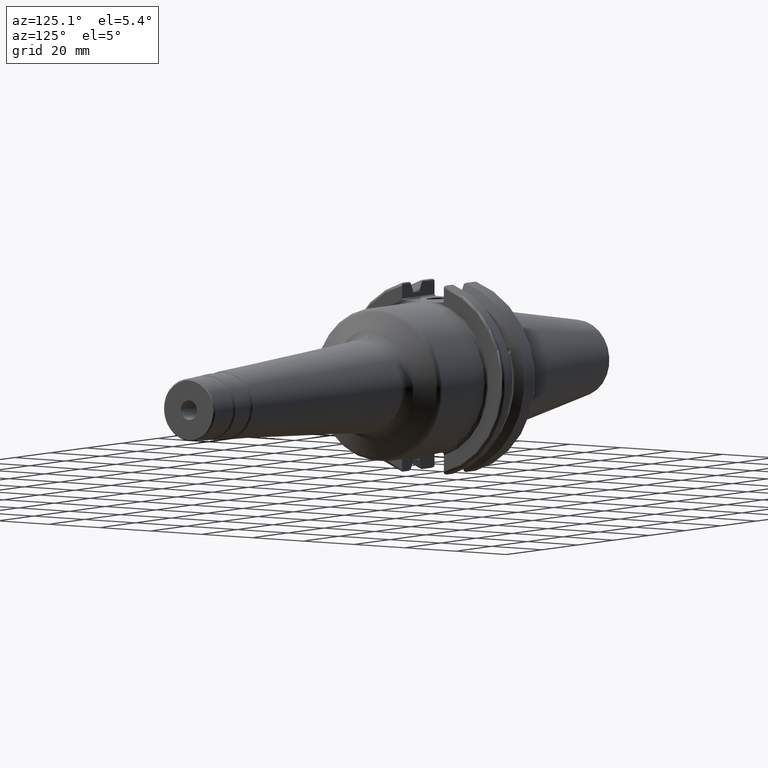
[diagram: clean part render]
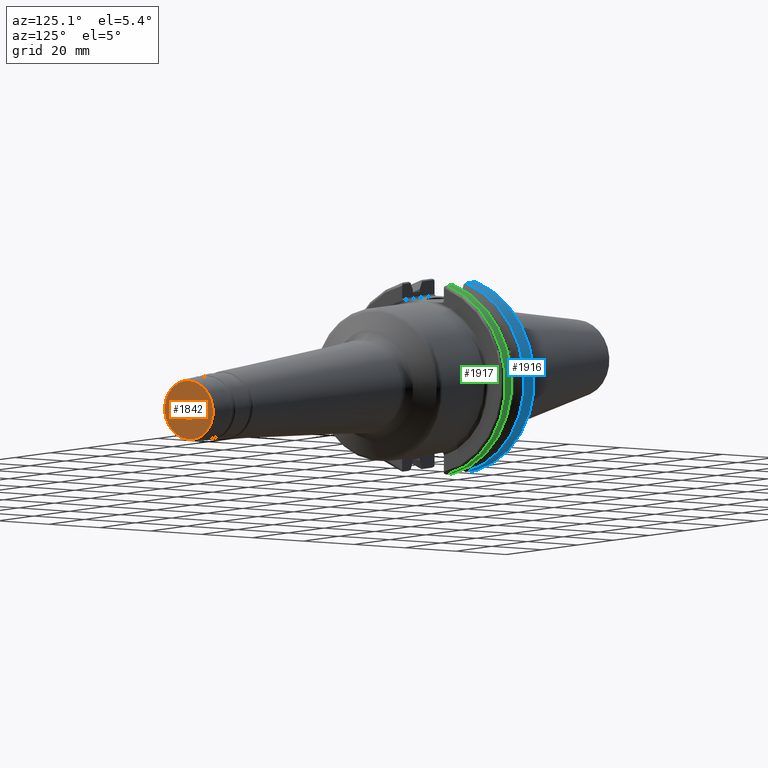
[diagram: same view with three faces highlighted in distinct colors, each labeled with its STEP entity id]
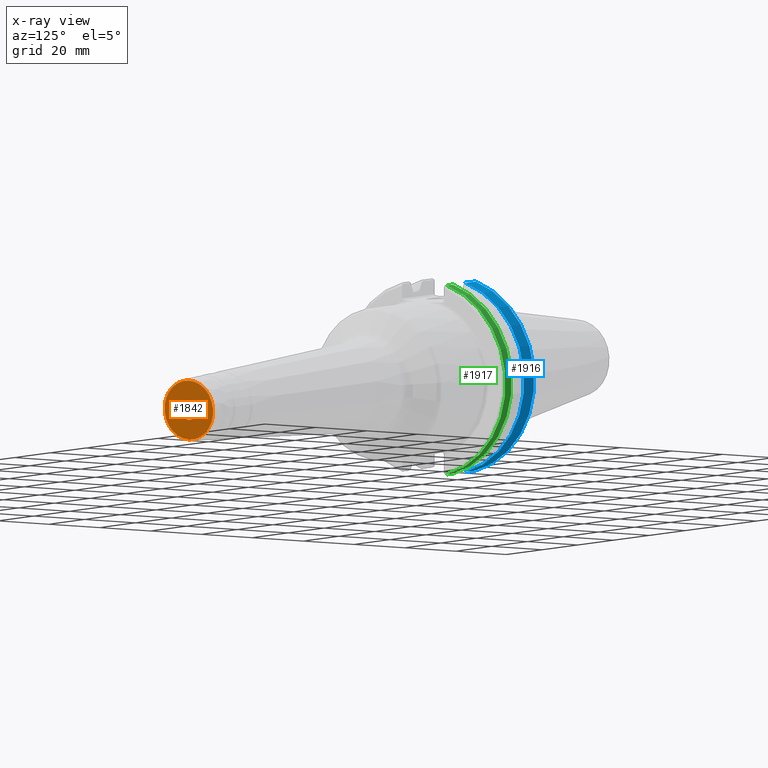
[diagram: x-ray of the same camera — body ghosted, the three highlighted faces saturated]
A machine part, auxiliary view with three faces highlighted in distinct colors.
The next image is the same camera in x-ray (body ghosted, the three faces saturated) — at least one of them is partly hidden behind the body in this view.
Their STEP definitions:

[orange] entity #1842 — the highlighted planar face has unit normal (1, 0, 0).
#49=PLANE('',#2000);
#105=FACE_BOUND('',#307,.T.);
#197=FACE_OUTER_BOUND('',#306,.T.);
#306=EDGE_LOOP('',(#1292));
#307=EDGE_LOOP('',(#1293));
#631=CIRCLE('',#1993,9.52551771664256);
#637=CIRCLE('',#2001,3.17500000000001);
#760=VERTEX_POINT('',#2970);
#765=VERTEX_POINT('',#2984);
#964=EDGE_CURVE('',#760,#760,#631,.T.);
#971=EDGE_CURVE('',#765,#765,#637,.T.);
#1292=ORIENTED_EDGE('',*,*,#964,.F.);
#1293=ORIENTED_EDGE('',*,*,#971,.F.);
#1842=ADVANCED_FACE('',(#197,#105),#49,.T.);
#1993=AXIS2_PLACEMENT_3D('',#2971,#2289,#2290);
#2000=AXIS2_PLACEMENT_3D('',#2983,#2304,#2305);
#2001=AXIS2_PLACEMENT_3D('',#2985,#2306,#2307);
#2289=DIRECTION('center_axis',(-1.,0.,0.));
#2290=DIRECTION('ref_axis',(0.,-1.,1.83697019872103E-16));
#2304=DIRECTION('center_axis',(1.,0.,0.));
#2305=DIRECTION('ref_axis',(0.,0.,-1.));
#2306=DIRECTION('center_axis',(1.,0.,0.));
#2307=DIRECTION('ref_axis',(0.,0.,-1.));
#2970=CARTESIAN_POINT('',(150.,-1.16653947819077E-15,9.52551771664256));
#2971=CARTESIAN_POINT('Origin',(150.,0.,0.));
#2983=CARTESIAN_POINT('Origin',(150.,3.17500000000001,0.));
#2984=CARTESIAN_POINT('',(150.,-3.175,-3.88825358729285E-16));
#2985=CARTESIAN_POINT('Origin',(150.,0.,0.));

[blue] entity #1916 — the highlighted cylindrical surface (partial cylindrical patch) has radius 31.75 mm, axis along (1, 0, 0).
#178=CYLINDRICAL_SURFACE('',#2178,31.75);
#271=FACE_OUTER_BOUND('',#391,.T.);
#391=EDGE_LOOP('',(#1718,#1719,#1720,#1721));
#495=LINE('',#3704,#593);
#504=LINE('',#3742,#602);
#593=VECTOR('',#2701,10.);
#602=VECTOR('',#2742,10.);
#716=CIRCLE('',#2161,31.75);
#723=CIRCLE('',#2179,31.75);
#912=VERTEX_POINT('',#3677);
#913=VERTEX_POINT('',#3686);
#914=VERTEX_POINT('',#3703);
#921=VERTEX_POINT('',#3741);
#1181=EDGE_CURVE('',#912,#913,#716,.T.);
#1184=EDGE_CURVE('',#913,#914,#495,.T.);
#1201=EDGE_CURVE('',#921,#912,#504,.T.);
#1202=EDGE_CURVE('',#914,#921,#723,.T.);
#1718=ORIENTED_EDGE('',*,*,#1181,.F.);
#1719=ORIENTED_EDGE('',*,*,#1201,.F.);
#1720=ORIENTED_EDGE('',*,*,#1202,.F.);
#1721=ORIENTED_EDGE('',*,*,#1184,.F.);
#1916=ADVANCED_FACE('',(#271),#178,.T.);
#2161=AXIS2_PLACEMENT_3D('',#3687,#2697,#2698);
#2178=AXIS2_PLACEMENT_3D('',#3740,#2740,#2741);
#2179=AXIS2_PLACEMENT_3D('',#3743,#2743,#2744);
#2697=DIRECTION('center_axis',(-1.,0.,0.));
#2698=DIRECTION('ref_axis',(0.,1.,1.60812264967664E-16));
#2701=DIRECTION('',(1.,0.,0.));
#2740=DIRECTION('center_axis',(1.,0.,0.));
#2741=DIRECTION('ref_axis',(0.,1.,0.));
#2742=DIRECTION('',(-1.,0.,0.));
#2743=DIRECTION('center_axis',(1.,0.,0.));
#2744=DIRECTION('ref_axis',(0.,0.,-1.));
#3677=CARTESIAN_POINT('',(2.,8.67204822802685,30.5427254764662));
#3686=CARTESIAN_POINT('',(2.,8.67204822802685,-30.5427254764662));
#3687=CARTESIAN_POINT('Origin',(2.,0.,0.));
#3703=CARTESIAN_POINT('',(7.60793323092436,8.67204822802685,-30.5427254764662));
#3704=CARTESIAN_POINT('',(4.30396661546218,8.67204822802685,-30.5427254764662));
#3740=CARTESIAN_POINT('Origin',(4.30396661546218,0.,0.));
#3741=CARTESIAN_POINT('',(7.60793323092436,8.67204822802685,30.5427254764662));
#3742=CARTESIAN_POINT('',(4.30396661546218,8.67204822802685,30.5427254764662));
#3743=CARTESIAN_POINT('Origin',(7.60793323092436,0.,0.));

[green] entity #1917 — the highlighted cylindrical surface (partial cylindrical patch) has radius 31.75 mm, axis along (1, 0, 0).
#179=CYLINDRICAL_SURFACE('',#2180,31.75);
#272=FACE_OUTER_BOUND('',#392,.T.);
#392=EDGE_LOOP('',(#1722,#1723,#1724,#1725));
#478=LINE('',#3550,#576);
#505=LINE('',#3745,#603);
#576=VECTOR('',#2656,10.);
#603=VECTOR('',#2747,10.);
#699=CIRCLE('',#2122,31.75);
#712=CIRCLE('',#2147,31.75);
#863=VERTEX_POINT('',#3442);
#864=VERTEX_POINT('',#3446);
#889=VERTEX_POINT('',#3529);
#890=VERTEX_POINT('',#3538);
#1109=EDGE_CURVE('',#864,#863,#699,.T.);
#1143=EDGE_CURVE('',#889,#890,#712,.T.);
#1146=EDGE_CURVE('',#864,#889,#478,.T.);
#1203=EDGE_CURVE('',#890,#863,#505,.T.);
#1722=ORIENTED_EDGE('',*,*,#1143,.F.);
#1723=ORIENTED_EDGE('',*,*,#1146,.F.);
#1724=ORIENTED_EDGE('',*,*,#1109,.T.);
#1725=ORIENTED_EDGE('',*,*,#1203,.F.);
#1917=ADVANCED_FACE('',(#272),#179,.T.);
#2122=AXIS2_PLACEMENT_3D('',#3447,#2586,#2587);
#2147=AXIS2_PLACEMENT_3D('',#3539,#2651,#2652);
#2180=AXIS2_PLACEMENT_3D('',#3744,#2745,#2746);
#2586=DIRECTION('center_axis',(1.,0.,0.));
#2587=DIRECTION('ref_axis',(0.,0.,-1.));
#2651=DIRECTION('center_axis',(1.,0.,0.));
#2652=DIRECTION('ref_axis',(0.,1.,-6.12323399573677E-17));
#2656=DIRECTION('',(1.,0.,0.));
#2745=DIRECTION('center_axis',(1.,0.,0.));
#2746=DIRECTION('ref_axis',(0.,1.,0.));
#2747=DIRECTION('',(-1.,0.,0.));
#3442=CARTESIAN_POINT('',(14.6602667690756,8.67204822802685,30.5427254764662));
#3446=CARTESIAN_POINT('',(14.6602667690756,8.67204822802685,-30.5427254764662));
#3447=CARTESIAN_POINT('Origin',(14.6602667690756,0.,0.));
#3529=CARTESIAN_POINT('',(18.05,8.67204822802685,-30.5427254764662));
#3538=CARTESIAN_POINT('',(18.05,8.67204822802685,30.5427254764662));
#3539=CARTESIAN_POINT('Origin',(18.05,0.,0.));
#3550=CARTESIAN_POINT('',(16.8551333845378,8.67204822802685,-30.5427254764662));
#3744=CARTESIAN_POINT('Origin',(16.8551333845378,0.,0.));
#3745=CARTESIAN_POINT('',(16.8551333845378,8.67204822802685,30.5427254764662));